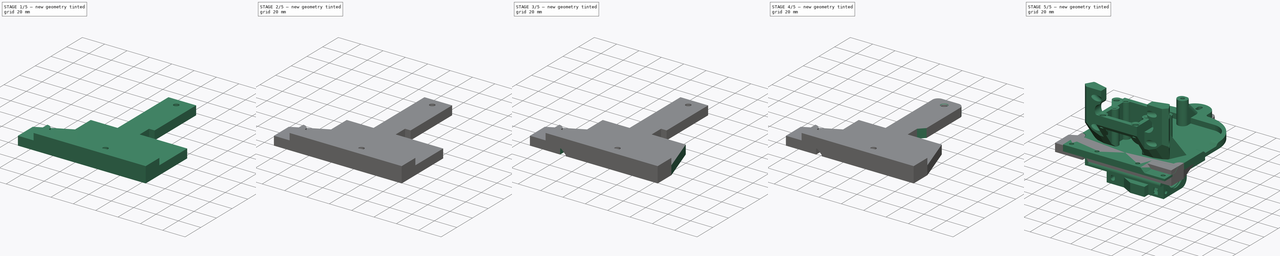
[diagram: build sequence overview — one tinted view per stage of 5, left to right]
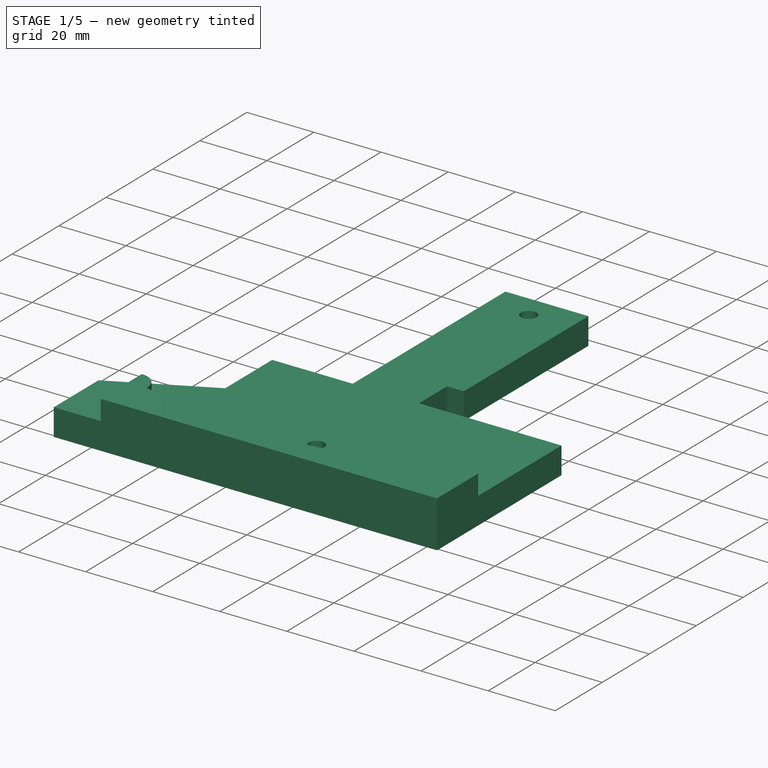
[diagram: stage 1 of 5 — iso view after this stage's code; geometry added in this stage tinted green]
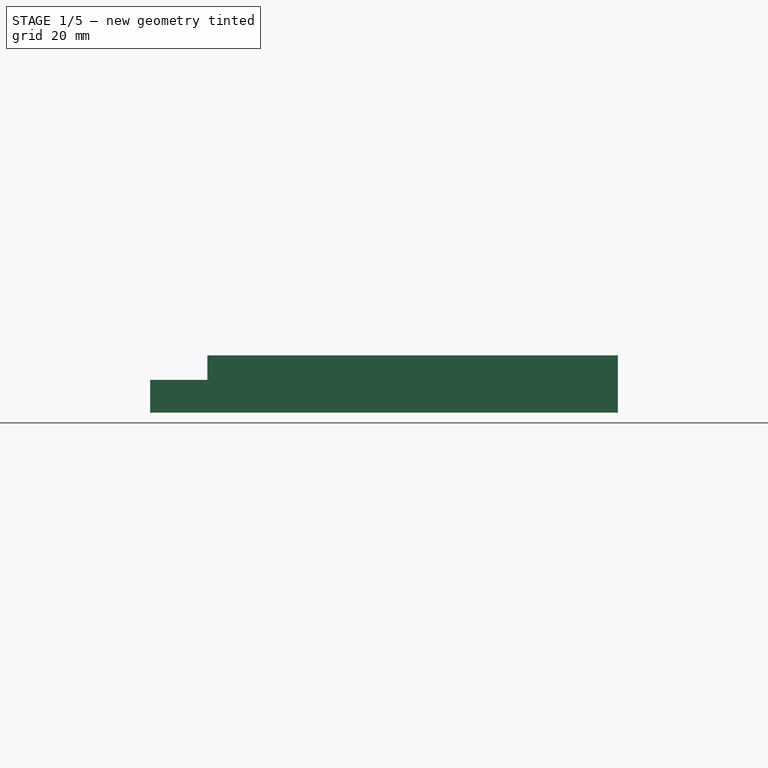
[diagram: stage 1 of 5 — front view after this stage's code; geometry added in this stage tinted green]
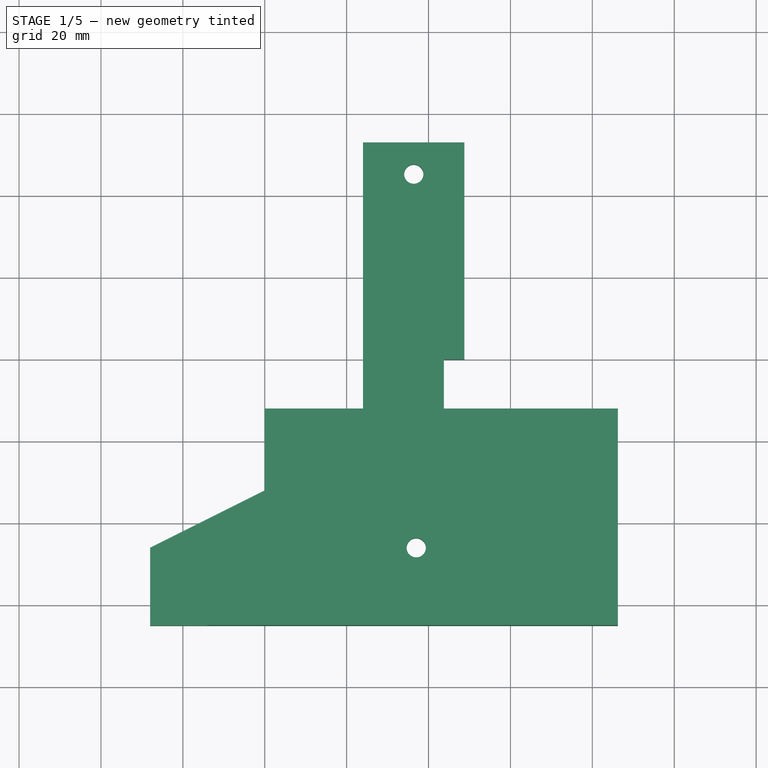
[diagram: stage 1 of 5 — top view after this stage's code; geometry added in this stage tinted green]
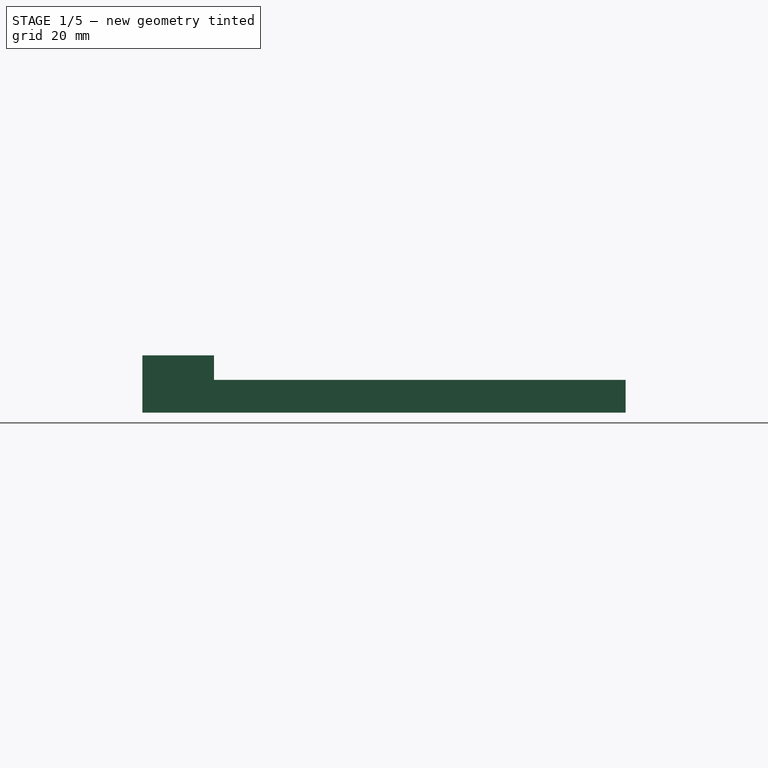
[diagram: stage 1 of 5 — right view after this stage's code; geometry added in this stage tinted green]
FCSTD DOCUMENT  (FreeCAD 0.17R13662 (Git))
Label: dual_v3_adaptor_v0.1
License: CreativeCommons Attribution-ShareAlike
LicenseURL: http://creativecommons.org/licenses/by-sa/4.0/
objects: Sketcher::SketchObject×8, Part::FeaturePython×5, PartDesign::Pocket×5, App::FeaturePython×4, PartDesign::Chamfer×4, PartDesign::Pad×2, PartDesign::SubtractivePipe×1, PartDesign::Fillet×1, PartDesign::Body×1
note: 35 computed .brp shape members not serialized (recipe doc carries the construction recipe); baked Part::Feature solids carry a one-line shape summary decoded from their .brp

FEATURE [PartDesign::Pad] Pad
  Length = 8
  Length2 = 100
  Profile = -> Sketch
  Reversed = true
  Type = 0
FEATURE [Sketcher::SketchObject] Sketch001
  MapMode = 5
  Support = -> [Pad]
  sketch-geometry (6):
    g0: Circle CenterX=37 CenterY=-46 CenterZ=0 NormalX=0 NormalY=0 NormalZ=1 AngleXU=0 Radius=2.35
    g1: Circle CenterX=36.4 CenterY=45.25 CenterZ=0 NormalX=0 NormalY=0 NormalZ=1 AngleXU=0 Radius=2.35
    g2: LineSegment StartX=48.75 StartY=0 StartZ=0 EndX=43.75 EndY=0 EndZ=0
    g3: LineSegment StartX=43.75 StartY=0 StartZ=0 EndX=43.75 EndY=-12 EndZ=0
    g4: LineSegment StartX=43.75 StartY=-12 StartZ=0 EndX=48.75 EndY=-12 EndZ=0
    g5: LineSegment StartX=48.75 StartY=-12 StartZ=0 EndX=48.75 EndY=0 EndZ=0
  constraints (18):
    c: DistanceX(g0) = 37
    c: DistanceY(g0) = -46
    c: Radius(g0) = 2.35
    c: DistanceX(g1) = 36.4
    c: DistanceY(g1) = 45.25
    c: Radius(g1) = 2.35
    c: Coincident(g2,g3)
    c: Coincident(g3,g4)
    c: Coincident(g4,g5)
    c: Coincident(g5,g2)
    c: Horizontal(g2)
    c: Horizontal(g4)
    c: Vertical(g3)
    c: Vertical(g5)
    c: PointOnObject(g2,g-1)
    c: DistanceX(g2) = 48.75
    c: DistanceX(g2,g2) = 5
    c: DistanceY(g5,g5) = 12
FEATURE [PartDesign::Pocket] Pocket
  BaseFeature = -> Pad
  Length = 5
  Length2 = 100
  Profile = -> Sketch001
  Type = 1
FEATURE [Sketcher::SketchObject] Sketch002
  MapMode = 5
  Support = -> [Pocket]
  sketch-geometry (11):
    g0: LineSegment StartX=-14 StartY=-65 StartZ=0 EndX=-14 EndY=-47.5 EndZ=0
    g1: LineSegment [constr] StartX=-14 StartY=-47.5 StartZ=0 EndX=-8.5 EndY=-53.375 EndZ=0
    g2: LineSegment StartX=-8.5 StartY=-53.5 StartZ=0 EndX=36.5 EndY=-58.5 EndZ=0
    g3: LineSegment StartX=36.5 StartY=-58.5 StartZ=0 EndX=80.738 EndY=-53.137 EndZ=0
    g4: LineSegment [constr] StartX=80.738 StartY=-53.012 StartZ=0 EndX=86.25 EndY=-47.5 EndZ=0
    g5: LineSegment StartX=86.25 StartY=-47.5 StartZ=0 EndX=86.25 EndY=-65 EndZ=0
    g6: LineSegment StartX=86.25 StartY=-65 StartZ=0 EndX=-14 EndY=-65 EndZ=0
    g7: ArcOfCircle CenterX=86.25 CenterY=-53.012 CenterZ=0 NormalX=0 NormalY=0 NormalZ=1 AngleXU=0 Radius=5.51197 StartAngle=1.5708 EndAngle=3.14159
    g8: ArcOfCircle CenterX=-14 CenterY=-53.012 CenterZ=0 NormalX=0 NormalY=0 NormalZ=1 AngleXU=0 Radius=5.51197 StartAngle=6.21728 EndAngle=7.85398
    g9: LineSegment StartX=-8.5 StartY=-53.375 StartZ=0 EndX=-8.5 EndY=-53.5 EndZ=0
    g10: LineSegment StartX=80.738 StartY=-53.012 StartZ=0 EndX=80.738 EndY=-53.137 EndZ=0
  constraints (33):
    c: Coincident(g0,g1)
    c: Coincident(g2,g3)
    c: Coincident(g4,g5)
    c: Coincident(g5,g6)
    c: Coincident(g0,g6)
    c: Horizontal(g6)
    c: Vertical(g0)
    c: Vertical(g5)
    c: Coincident(g0,g8)
    c: PointOnObject(g8,g0)
    c: DistanceX(g8) = -14
    c: DistanceY(g0,g0) = 17.5
    c: PointOnObject(g7,g5)
    c: Coincident(g4,g7)
    c: DistanceX(g4) = 86.25
    c: DistanceY(g0,g4) = 0
    c: DistanceX(g2) = 36.5
    c: DistanceY(g2) = -58.5
    c: DistanceY(g0) = -65
    c: Coincident(g1,g8)
    c: Coincident(g2,g9)
    c: Coincident(g1,g9)
    c: Vertical(g9)
    c: Coincident(g4,g7)
    c: DistanceY(g7,g4) = 0
    c: Coincident(g4,g10)
    c: Coincident(g3,g10)
    c: Vertical(g10)
    c: Equal(g10,g9)
    c: DistanceY(g9,g9) = 0.125
    c: DistanceX(g8,g2) = 5.5
    c: Equal(g7,g8)
    c: DistanceY(g2) = -53.5
FEATURE [PartDesign::Pad] Pad001
  BaseFeature = -> Pocket
  Length = 6
  Length2 = 100
  Profile = -> Sketch002
  Type = 0
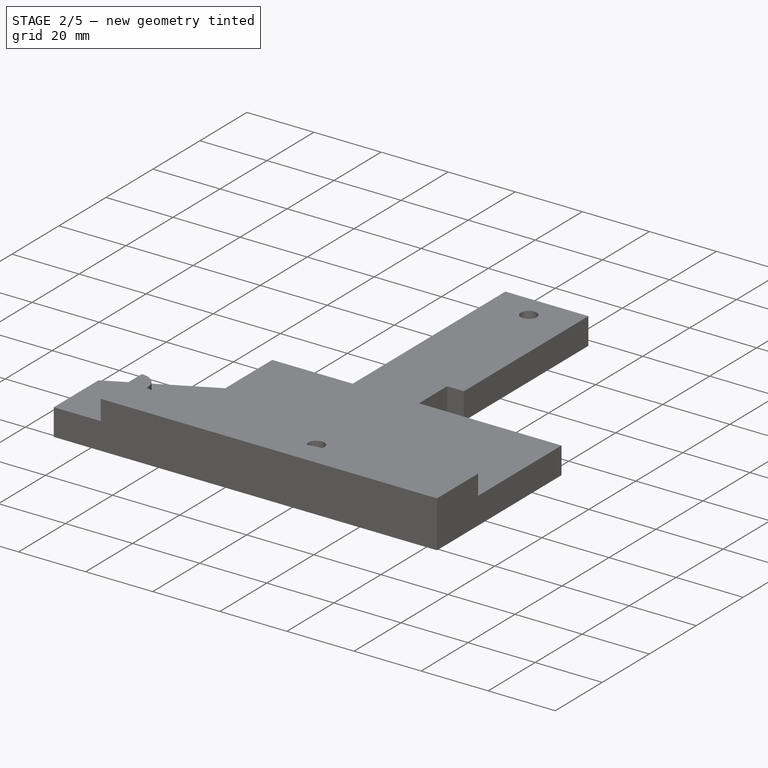
[diagram: stage 2 of 5 — iso view after this stage's code; geometry added in this stage tinted green]
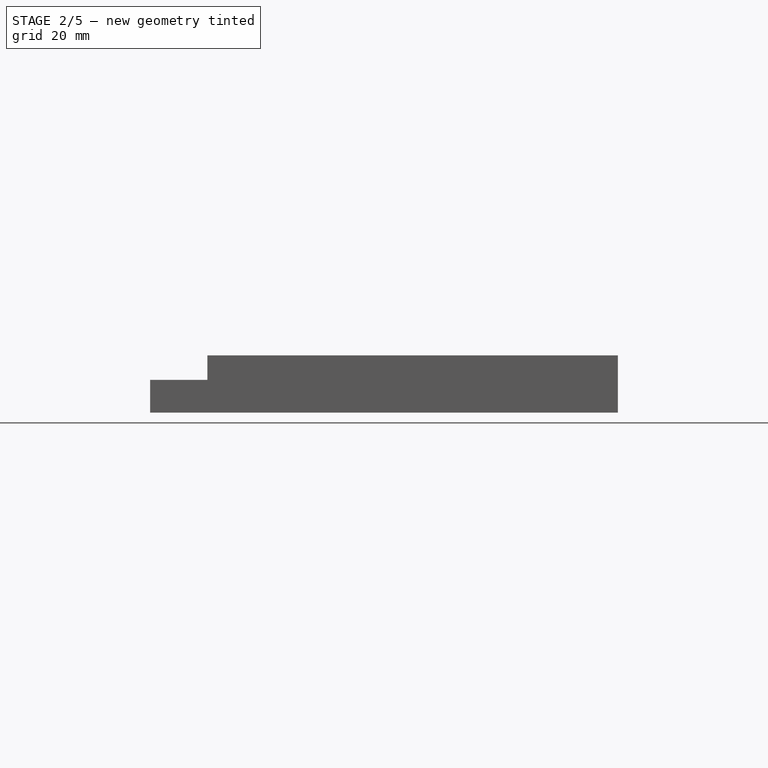
[diagram: stage 2 of 5 — front view after this stage's code; geometry added in this stage tinted green]
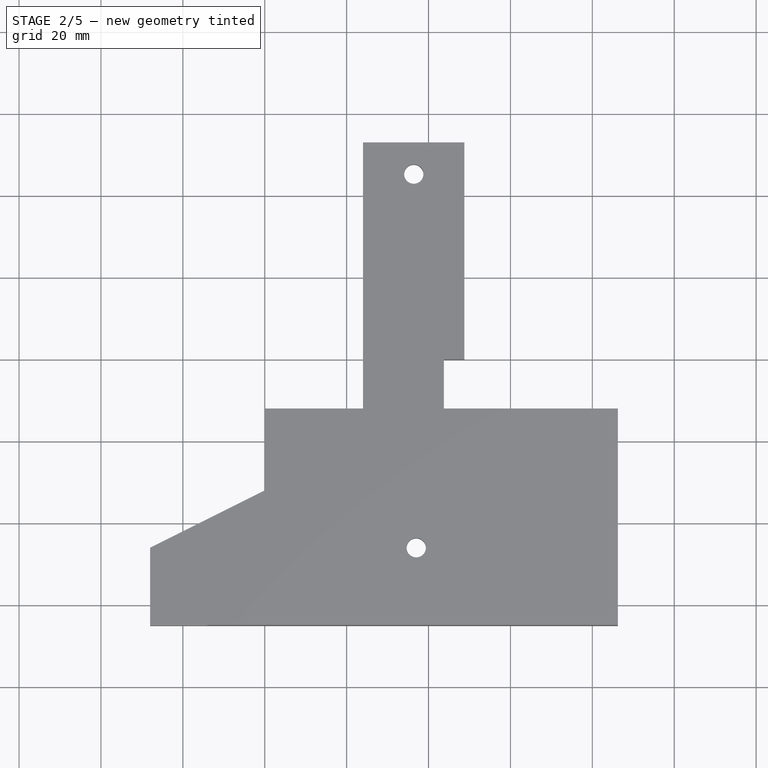
[diagram: stage 2 of 5 — top view after this stage's code; geometry added in this stage tinted green]
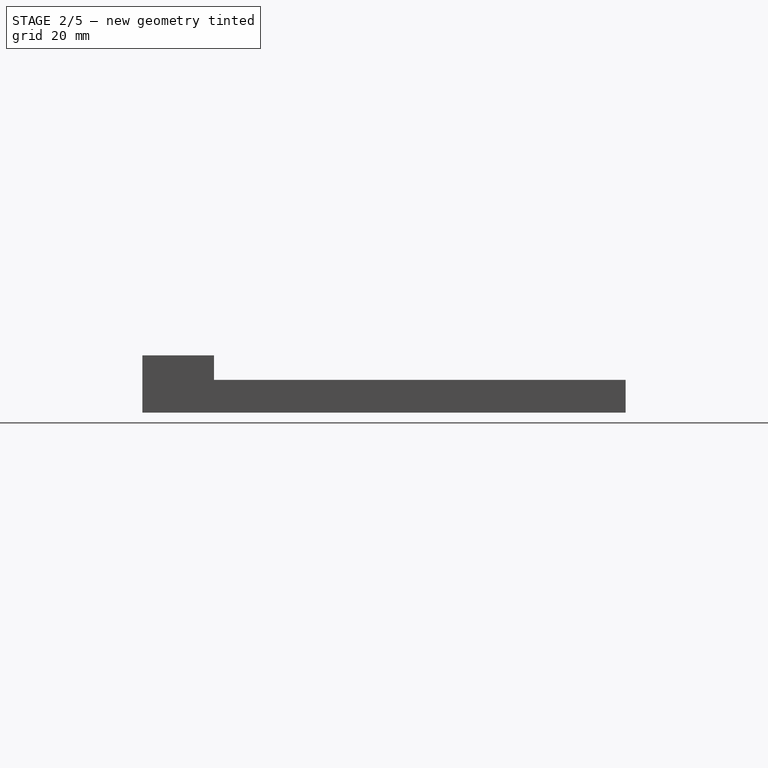
[diagram: stage 2 of 5 — right view after this stage's code; geometry added in this stage tinted green]
FEATURE [Sketcher::SketchObject] Sketch003
  MapMode = 5
  Placement = pos=(-8.5,0,0) rot=(0.57735,0.57735,0.57735;2.0944rad)
  Support = -> [Pad001]
  sketch-geometry (3):
    g0: LineSegment StartX=-53.5 StartY=5.9 StartZ=0 EndX=-59.4 EndY=0 EndZ=0
    g1: LineSegment StartX=-59.4 StartY=0 StartZ=0 EndX=-53.5 EndY=0 EndZ=0
    g2: LineSegment StartX=-53.5 StartY=0 StartZ=0 EndX=-53.5 EndY=5.9 EndZ=0
  constraints (9):
    c: Coincident(g0,g1)
    c: Coincident(g1,g2)
    c: Coincident(g2,g0)
    c: Vertical(g2)
    c: Horizontal(g1)
    c: Equal(g1,g2)
    c: DistanceY(g2,g2) = 5.9
    c: PointOnObject(g1,g-1)
    c: DistanceX(g1) = -53.5
FEATURE [PartDesign::SubtractivePipe] SubtractivePipe
  AuxilleryCurvelinear = true
  AuxillerySpineTangent = false
  BaseFeature = -> Pad001
  Binormal = (0,0,0)
  Mode = 0
  Profile = -> Sketch003
  Spine = -> Pad001 [Edge17,Edge18]
  SpineTangent = false
  Transformation = 0
  Transition = 0
FEATURE [Sketcher::SketchObject] Sketch004
  MapMode = 5
  Placement = pos=(0,0,-8) rot=(1,0,0;3.14159rad)
  Support = -> [SubtractivePipe]
  sketch-geometry (21):
    g0: LineSegment StartX=24.0255 StartY=57.6314 StartZ=0 EndX=35.5801 EndY=50.65 EndZ=0
    g1: LineSegment StartX=35.5801 StartY=50.65 StartZ=0 EndX=31.9601 EndY=44.6587 EndZ=0
    g2: LineSegment StartX=31.9601 StartY=44.6587 StartZ=0 EndX=20.4055 EndY=51.6401 EndZ=0
    g3: LineSegment StartX=20.4055 StartY=51.6401 StartZ=0 EndX=24.0255 EndY=57.6314 EndZ=0
    g4: LineSegment StartX=38.4199 StartY=50.65 StartZ=0 EndX=42.0399 EndY=44.6587 EndZ=0
    g5: LineSegment StartX=42.0399 StartY=44.6587 StartZ=0 EndX=53.5945 EndY=51.6401 EndZ=0
    g6: LineSegment StartX=53.5945 StartY=51.6401 StartZ=0 EndX=49.9745 EndY=57.6314 EndZ=0
    g7: LineSegment StartX=49.9745 StartY=57.6314 StartZ=0 EndX=38.4199 EndY=50.65 EndZ=0
    g8: LineSegment StartX=33.25 StartY=42.25 StartZ=0 EndX=40.75 EndY=42.25 EndZ=0
    g9: LineSegment StartX=40.75 StartY=42.25 StartZ=0 EndX=40.75 EndY=30.5 EndZ=0
    g10: LineSegment StartX=40.75 StartY=30.5 StartZ=0 EndX=33.25 EndY=30.5 EndZ=0
    g11: LineSegment StartX=33.25 StartY=30.5 StartZ=0 EndX=33.25 EndY=42.25 EndZ=0
    g12: LineSegment [constr] StartX=37 StartY=53 StartZ=0 EndX=30.5048 EndY=42.25 EndZ=0
    g13: LineSegment [constr] StartX=30.5048 StartY=42.25 StartZ=0 EndX=43.4952 EndY=42.25 EndZ=0
    g14: LineSegment [constr] StartX=43.4952 StartY=42.25 StartZ=0 EndX=37 EndY=53 EndZ=0
    g15: Circle [constr] CenterX=37 CenterY=46 CenterZ=0 NormalX=0 NormalY=0 NormalZ=1 AngleXU=0 Radius=7.5
    g16: Circle [constr] CenterX=37 CenterY=46 CenterZ=0 NormalX=0 NormalY=0 NormalZ=1 AngleXU=0 Radius=2
    g17: LineSegment [constr] StartX=38.4199 StartY=50.65 StartZ=0 EndX=35.5801 EndY=50.65 EndZ=0
    g18: LineSegment [constr] StartX=35.5801 StartY=50.65 StartZ=0 EndX=31.9601 EndY=44.6587 EndZ=0
    g19: LineSegment [constr] StartX=31.9601 StartY=44.6587 StartZ=0 EndX=42.0399 EndY=44.6587 EndZ=0
    g20: LineSegment [constr] StartX=42.0399 StartY=44.6587 StartZ=0 EndX=38.4199 EndY=50.65 EndZ=0
  constraints (58):
    c: Coincident(g0,g1)
    c: Coincident(g1,g2)
    c: Coincident(g2,g3)
    c: Coincident(g4,g5)
    c: Coincident(g5,g6)
    c: Coincident(g6,g7)
    c: Coincident(g8,g9)
    c: Coincident(g9,g10)
    c: Coincident(g10,g11)
    c: Coincident(g8,g11)
    c: Vertical(g11)
    c: Vertical(g9)
    c: Coincident(g4,g7)
    c: Coincident(g0,g3)
    c: Coincident(g12,g13)
    c: Coincident(g13,g14)
    c: Coincident(g14,g12)
    c: Equal(g12,g14)
    c: PointOnObject(g12,g15)
    c: PointOnObject(g13,g15)
    c: Coincident(g15,g16)
    c: DistanceX(g15) = 37
    c: DistanceY(g15) = 46
    c: Radius(g15) = 7.5
    c: Radius(g16) = 2
    c: PointOnObject(g4,g14)
    c: PointOnObject(g4,g14)
    c: Horizontal(g13)
    c: Perpendicular(g4,g5)
    c: Perpendicular(g7,g6)
    c: Perpendicular(g5,g6)
    c: DistanceY(g13,g15) = 3.75
    c: DistanceY(g14,g14) = 10.75
    c: Perpendicular(g3,g0)
    c: Perpendicular(g1,g0)
    c: Perpendicular(g2,g1)
    c: Coincident(g17,g18)
    c: Coincident(g18,g19)
    c: Coincident(g19,g20)
    c: Coincident(g20,g17)
    c: Horizontal(g17)
    c: Horizontal(g19)
    c: Coincident(g0,g17)
    c: Coincident(g4,g17)
    c: Coincident(g4,g19)
    c: Coincident(g1,g18)
    c: PointOnObject(g0,g12)
    c: PointOnObject(g1,g12)
    c: Distance(g1) = 7
    c: Horizontal(g8)
    c: PointOnObject(g8,g13)
    c: DistanceX(g15,g8) = 3.75
    c: DistanceX(g8,g8) = 7.5
    c: DistanceY(g9,g9) = 11.75
    c: DistanceY(g15,g0) = 4.65
    c: Equal(g0,g7)
    c: Distance(g7) = 13.5
    c: Horizontal(g10)
FEATURE [PartDesign::Pocket] Pocket001
  BaseFeature = -> SubtractivePipe
  Length = 3
  Length2 = 100
  Profile = -> Sketch004
  Type = 0
FEATURE [Sketcher::SketchObject] Sketch005
  MapMode = 5
  Placement = pos=(0,-12,0) rot=(0,0.707107,0.707107;3.14159rad)
  Support = -> [Pocket001]
  sketch-geometry (2):
    g0: Circle CenterX=-57 CenterY=-4.125 CenterZ=0 NormalX=0 NormalY=0 NormalZ=1 AngleXU=0 Radius=2.35
    g1: Circle CenterX=-9 CenterY=-4.125 CenterZ=0 NormalX=0 NormalY=0 NormalZ=1 AngleXU=0 Radius=2.35
  constraints (6):
    c: DistanceX(g0) = -57
    c: DistanceY(g0) = -4.125
    c: Radius(g0) = 2.35
    c: DistanceX(g1,g0) = -48
    c: DistanceY(g1,g0) = 0
    c: Equal(g0,g1)
FEATURE [PartDesign::Pocket] Pocket002
  BaseFeature = -> Pocket001
  Length = 7
  Length2 = 100
  Profile = -> Sketch005
  Type = 0
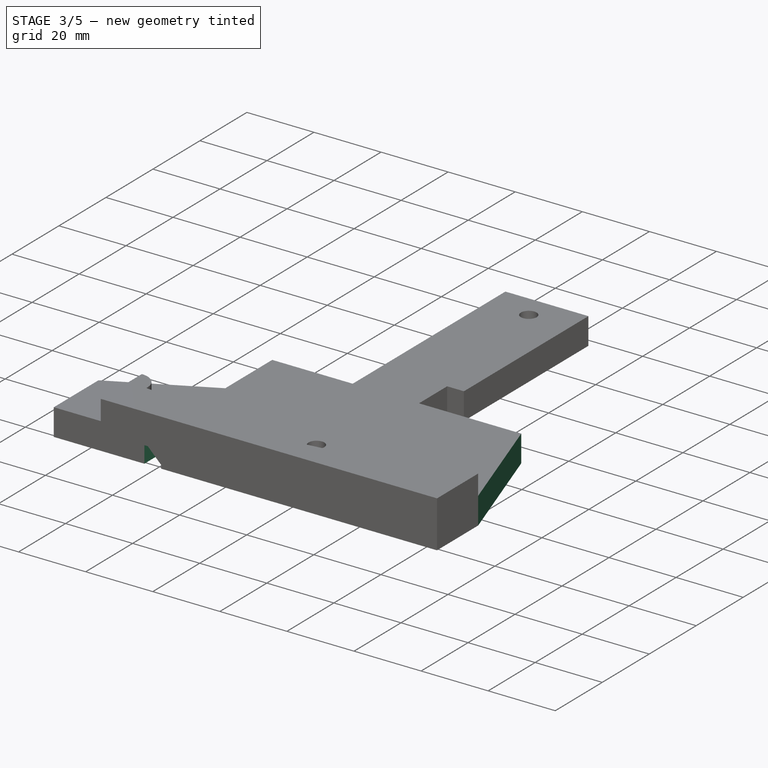
[diagram: stage 3 of 5 — iso view after this stage's code; geometry added in this stage tinted green]
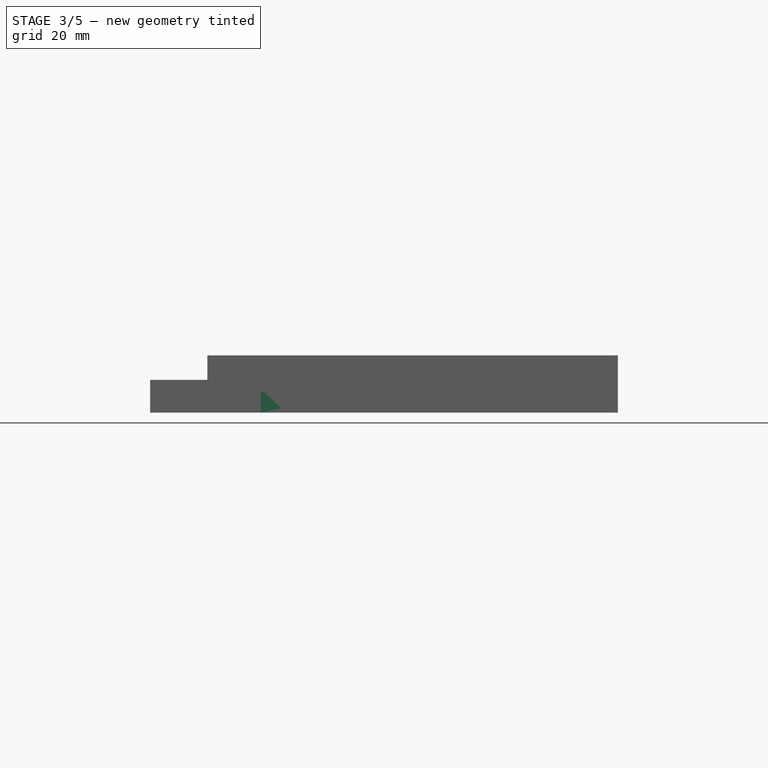
[diagram: stage 3 of 5 — front view after this stage's code; geometry added in this stage tinted green]
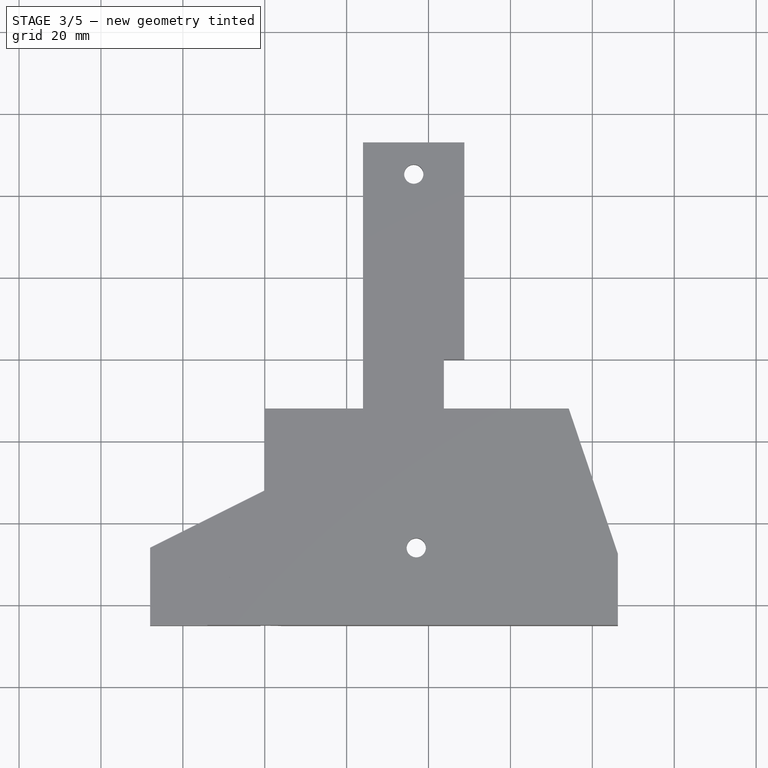
[diagram: stage 3 of 5 — top view after this stage's code; geometry added in this stage tinted green]
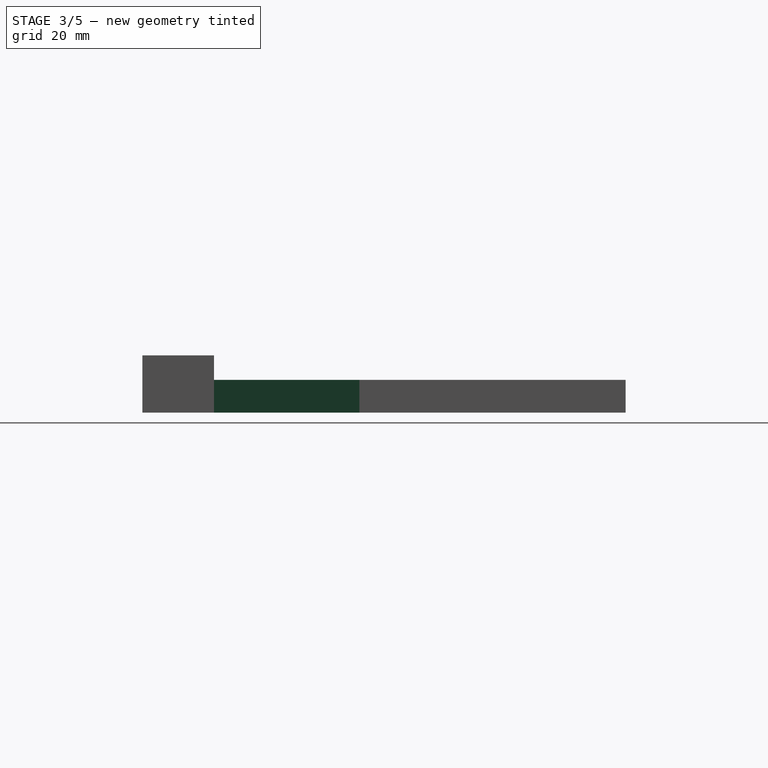
[diagram: stage 3 of 5 — right view after this stage's code; geometry added in this stage tinted green]
FEATURE [Sketcher::SketchObject] Sketch006
  ExternalGeometry = -> [Pocket002]
  MapMode = 5
  Support = -> [Pocket002]
  sketch-geometry (3):
    g0: LineSegment StartX=74.25 StartY=-12 StartZ=0 EndX=86.25 EndY=-47.5 EndZ=0
    g1: LineSegment StartX=86.25 StartY=-47.5 StartZ=0 EndX=86.25 EndY=-12 EndZ=0
    g2: LineSegment StartX=86.25 StartY=-12 StartZ=0 EndX=74.25 EndY=-12 EndZ=0
  constraints (8):
    c: Coincident(g0,g1)
    c: Coincident(g1,g2)
    c: Coincident(g0,g2)
    c: Coincident(g1,g-4)
    c: Vertical(g1)
    c: Coincident(g0,g-3)
    c: Horizontal(g2)
    c: DistanceX(g2,g2) = 12
FEATURE [PartDesign::Pocket] Pocket003
  BaseFeature = -> Pocket002
  Length = 5
  Length2 = 100
  Profile = -> Sketch006
  Type = 1
FEATURE [Sketcher::SketchObject] Sketch007
  MapMode = 5
  Placement = pos=(0,0,-8) rot=(1,0,0;3.14159rad)
  Support = -> [Pocket003]
  sketch-geometry (4):
    g0: LineSegment StartX=-1 StartY=65 StartZ=0 EndX=4 EndY=65 EndZ=0
    g1: LineSegment StartX=4 StartY=65 StartZ=0 EndX=4 EndY=52 EndZ=0
    g2: LineSegment StartX=4 StartY=52 StartZ=0 EndX=-1 EndY=52 EndZ=0
    g3: LineSegment StartX=-1 StartY=52 StartZ=0 EndX=-1 EndY=65 EndZ=0
  constraints (12):
    c: Coincident(g0,g1)
    c: Coincident(g1,g2)
    c: Coincident(g2,g3)
    c: Coincident(g3,g0)
    c: Horizontal(g0)
    c: Horizontal(g2)
    c: Vertical(g1)
    c: Vertical(g3)
    c: DistanceX(g0) = -1
    c: DistanceY(g0) = 65
    c: DistanceX(g0,g0) = 5
    c: DistanceY(g1,g1) = 13
FEATURE [PartDesign::Pocket] Pocket004
  BaseFeature = -> Pocket003
  Length = 5
  Length2 = 100
  Profile = -> Sketch007
  Type = 0
FEATURE [PartDesign::Chamfer] Chamfer
  Base = -> Pocket004 [Edge102]
  BaseFeature = -> Pocket004
  Size = 3.99
FEATURE [PartDesign::Chamfer] Chamfer001
  Base = -> Chamfer [Face49,Face50,Face48]
  BaseFeature = -> Chamfer
  Size = 2.99
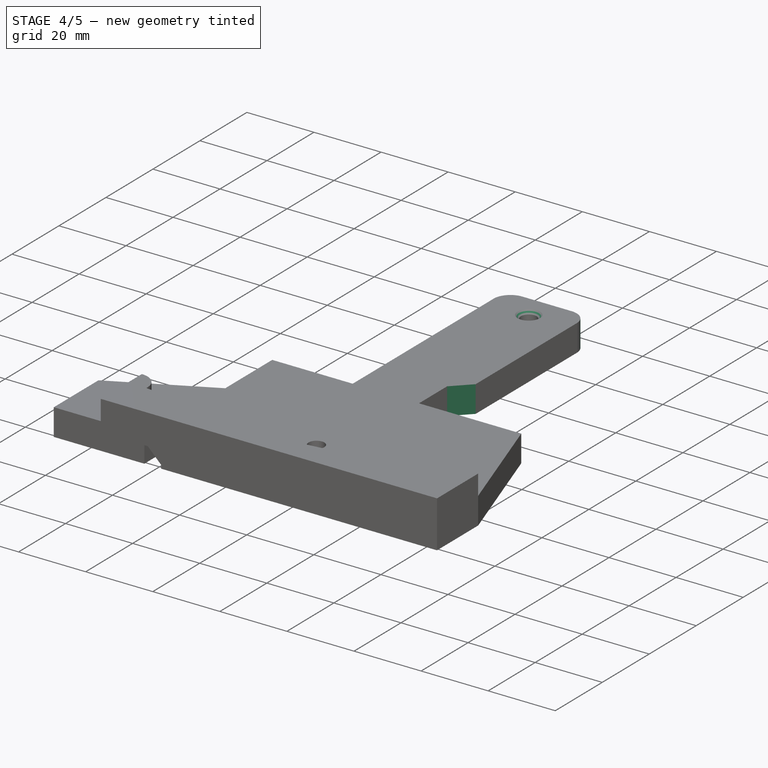
[diagram: stage 4 of 5 — iso view after this stage's code; geometry added in this stage tinted green]
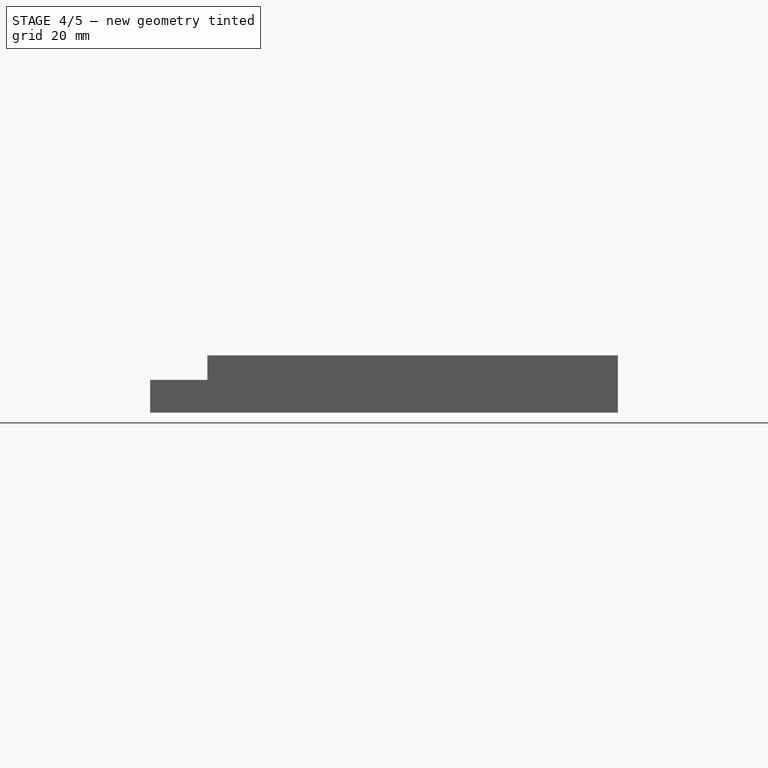
[diagram: stage 4 of 5 — front view after this stage's code; geometry added in this stage tinted green]
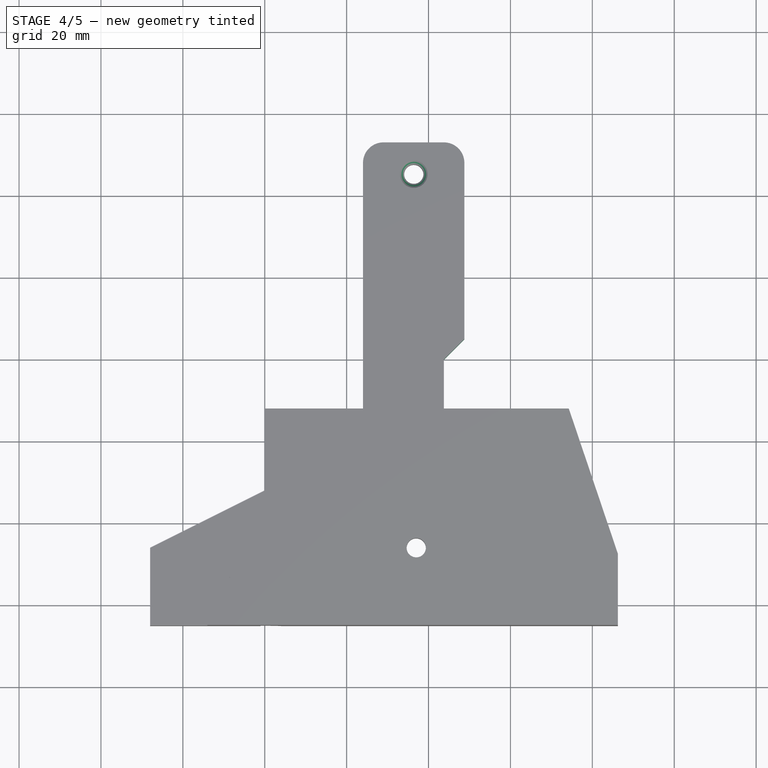
[diagram: stage 4 of 5 — top view after this stage's code; geometry added in this stage tinted green]
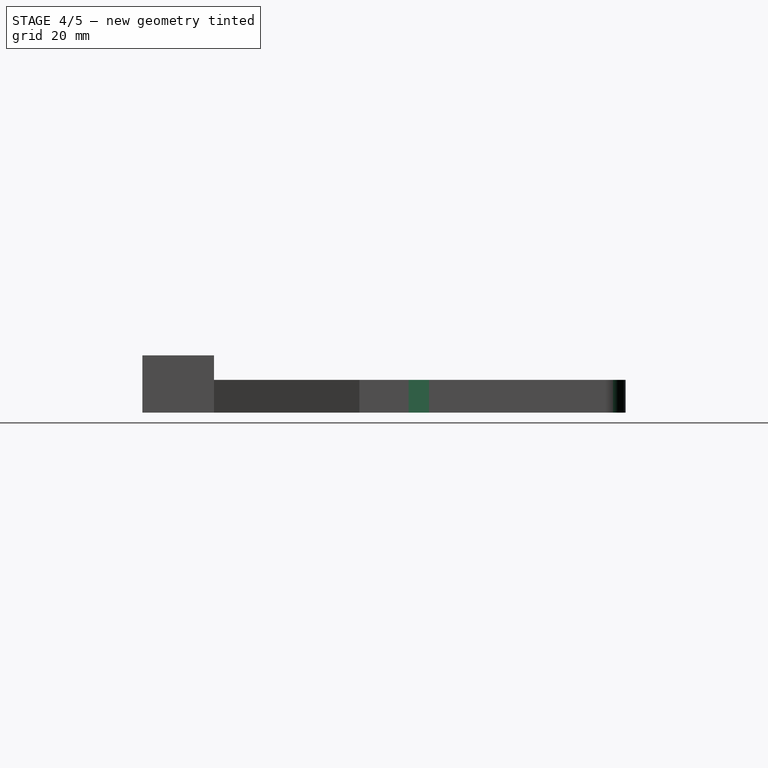
[diagram: stage 4 of 5 — right view after this stage's code; geometry added in this stage tinted green]
FEATURE [PartDesign::Chamfer] Chamfer002
  Base = -> Chamfer001 [Edge31,Edge108,Edge86,Edge71]
  BaseFeature = -> Chamfer001
  Size = 1
FEATURE [PartDesign::Fillet] Fillet
  Base = -> Chamfer002 [Edge66,Edge65]
  BaseFeature = -> Chamfer002
  Radius = 5
FEATURE [PartDesign::Chamfer] Chamfer003
  Base = -> Fillet [Edge37]
  BaseFeature = -> Fillet
  Size = 4.99
FEATURE [PartDesign::Body] Body
  Group = -> [Sketch,Pad,Sketch001,Pocket,Sketch002,Pad001,Sketch003,SubtractivePipe,Sketch004,Pocket001,Sketch005,Pocket002,Sketch006,Pocket003,Sketch007,Pocket004,Chamfer,Chamfer001,Chamfer002,Fillet,Chamfer003]
  Origin = -> Origin
  Tip = -> Chamfer003
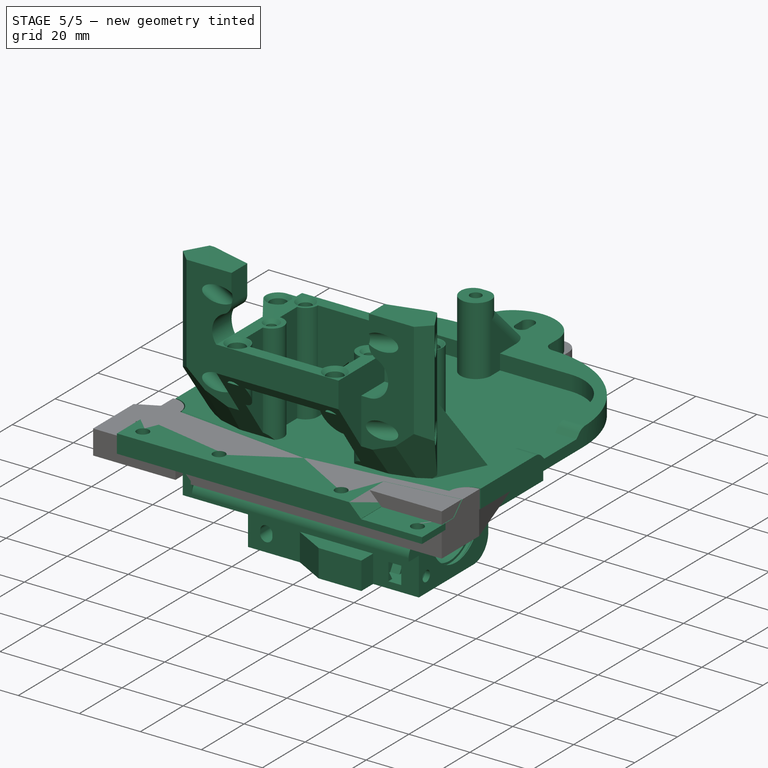
[diagram: stage 5 of 5 — iso view after this stage's code; geometry added in this stage tinted green]
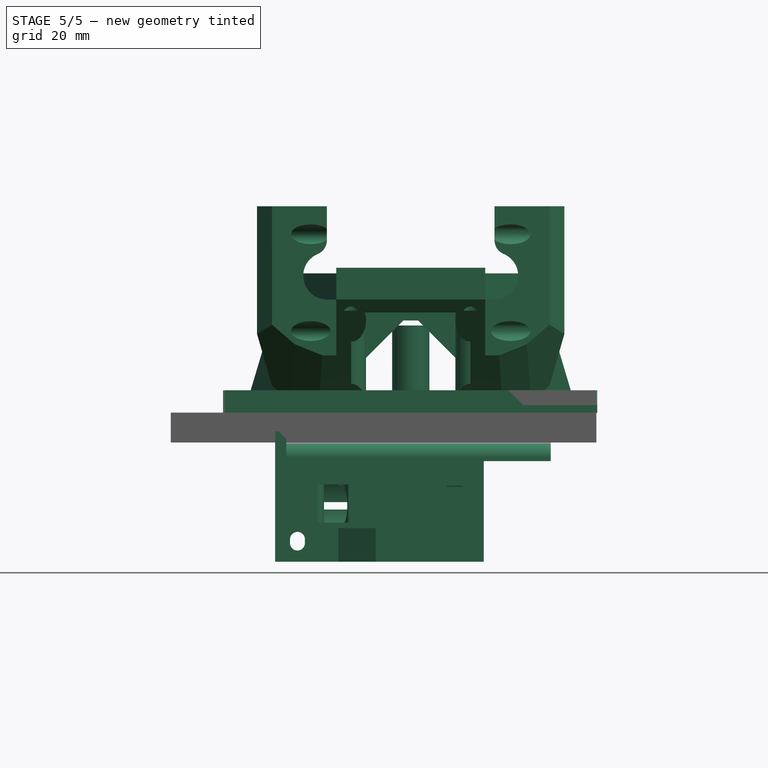
[diagram: stage 5 of 5 — front view after this stage's code; geometry added in this stage tinted green]
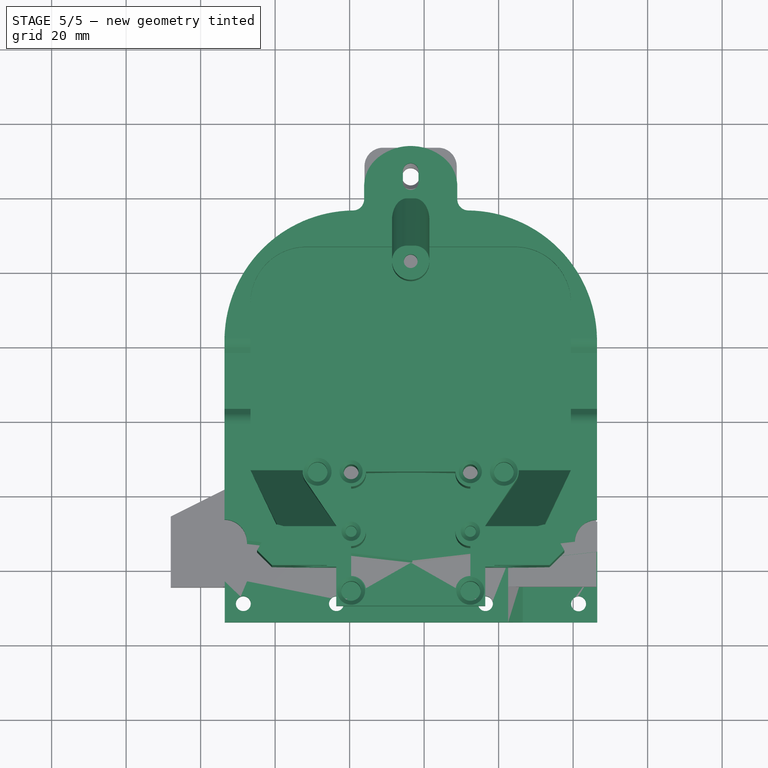
[diagram: stage 5 of 5 — top view after this stage's code; geometry added in this stage tinted green]
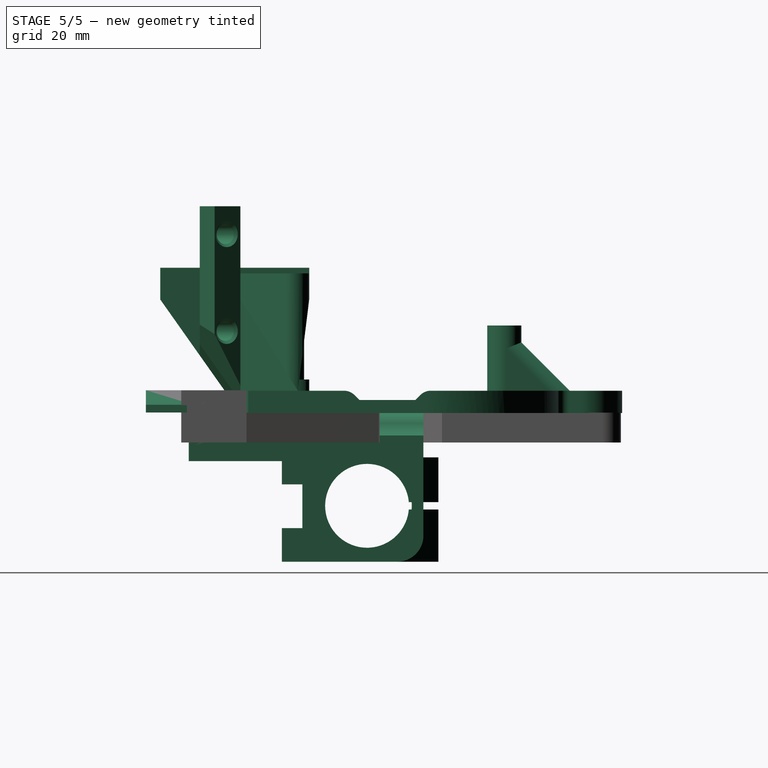
[diagram: stage 5 of 5 — right view after this stage's code; geometry added in this stage tinted green]
FEATURE [Part::FeaturePython] x_carriage_01  # a2plus imported part (geometry in sourceFile) (typed FeaturePython)
  Placement = pos=(0,0,0) rot=(0.57735,0.57735,0.57735;2.0944rad)
  fixedPosition = true
  sourceFile = <userpath>/Projects/taz-redgum/production_parts/printed_parts/x_carriage/x_carriage_v0.1.fcstd
  timeLastImport = 1.55839e+09
  updateColors = true
FEATURE [Part::FeaturePython] dual_mount_gs_01  # a2plus imported part (geometry in sourceFile) (typed FeaturePython)
  Placement = pos=(36.407,-5.44933,-0.1) rot=(0,0,1;0rad)
  fixedPosition = false
  sourceFile = <userpath>/Projects/yellowfin/production_parts/printed_parts/dual_mount/dual_mount_gs.fcstd
  timeLastImport = 1510609218
  updateColors = true
FEATURE [Part::FeaturePython] aerostruder_v2_01  # a2plus imported part (geometry in sourceFile) (typed FeaturePython)
  Placement = pos=(74.032,14,-8) rot=(-1,0,0;1.5708rad)
  fixedPosition = false
  sourceFile = <userpath>/Projects/mini-hibiscus/production_parts/assemblies/assembly_subs/aerostruder_v2.fcstd
  timeLastImport = 1.53434e+09
  updateColors = true
FEATURE [App::FeaturePython] circularEdgeConstraint01  label="circularEdgeConstraint01__x_carriage_01"  # a2plus constraint (typed FeaturePython)
  Object1 = aerostruder_v2_01
  Object2 = x_carriage_01
  SubElement1 = Edge833
  SubElement2 = Edge69
  Type = circularEdge
  directionConstraint = 1
  lockRotation = false
  offset = 0
FEATURE [App::FeaturePython] circularEdgeConstraint01_mirror  label="circularEdgeConstraint01__aerostruder_v2_01"  # a2plus constraint (typed FeaturePython)
  Object1 = aerostruder_v2_01
  Object2 = x_carriage_01
  SubElement1 = Edge833
  SubElement2 = Edge69
  Type = circularEdge
  directionConstraint = 1
  lockRotation = false
  offset = 0
FEATURE [Part::FeaturePython] somestruder_dual_assembly_01  # a2plus imported part (geometry in sourceFile) (typed FeaturePython)
  Placement = pos=(36.407,-5.44933,1.9) rot=(-1,0,0;1.5708rad)
  fixedPosition = false
  sourceFile = <userpath>/Projects/yellowfin/production_parts/assemblies/somestruder_dual_assembly.fcstd
  timeLastImport = 1510609218
  updateColors = true
FEATURE [Sketcher::SketchObject] Sketch
  MapMode = 5
  Support = -> [XY_Plane]
  sketch-geometry (10):
    g0: LineSegment StartX=0 StartY=-12 StartZ=0 EndX=24 EndY=-12 EndZ=0
    g1: LineSegment StartX=24 StartY=-12 StartZ=0 EndX=24 EndY=53 EndZ=0
    g2: LineSegment StartX=24 StartY=53 StartZ=0 EndX=48.75 EndY=53 EndZ=0
    g3: LineSegment StartX=48.75 StartY=53 StartZ=0 EndX=48.75 EndY=-12 EndZ=0
    g4: LineSegment StartX=48.75 StartY=-12 StartZ=0 EndX=86.25 EndY=-12 EndZ=0
    g5: LineSegment StartX=86.25 StartY=-12 StartZ=0 EndX=86.25 EndY=-65 EndZ=0
    g6: LineSegment StartX=86.25 StartY=-65 StartZ=0 EndX=-28 EndY=-65 EndZ=0
    g7: LineSegment StartX=-28 StartY=-65 StartZ=0 EndX=-28 EndY=-46 EndZ=0
    g8: LineSegment StartX=-28 StartY=-46 StartZ=0 EndX=0 EndY=-32 EndZ=0
    g9: LineSegment StartX=0 StartY=-32 StartZ=0 EndX=0 EndY=-12 EndZ=0
  constraints (30):
    c: Coincident(g0,g1)
    c: Coincident(g1,g2)
    c: Coincident(g2,g3)
    c: Coincident(g3,g4)
    c: Coincident(g4,g5)
    c: Coincident(g5,g6)
    c: Coincident(g6,g7)
    c: Coincident(g7,g8)
    c: Coincident(g8,g9)
    c: Coincident(g0,g9)
    c: Vertical(g9)
    c: Vertical(g1)
    c: Vertical(g3)
    c: Vertical(g5)
    c: Vertical(g7)
    c: Horizontal(g6)
    c: Horizontal(g0)
    c: Horizontal(g4)
    c: Horizontal(g2)
    c: PointOnObject(g0,g-2)
    c: DistanceY(g0) = -12
    c: DistanceY(g9,g9) = 20
    c: DistanceX(g8,g8) = 28
    c: DistanceX(g0,g0) = 24
    c: DistanceX(g2,g2) = 24.75
    c: DistanceY(g1,g1) = 65
    c: Equal(g3,g1)
    c: DistanceX(g4,g4) = 37.5
    c: DistanceY(g5,g5) = 53
    c: DistanceY(g8,g8) = 14
FEATURE [App::FeaturePython] circularEdgeConstraint02  label="circularEdgeConstraint02__somestruder_dual_assembly_01"  # a2plus constraint (typed FeaturePython)
  Object1 = dual_mount_gs_01
  Object2 = somestruder_dual_assembly_01
  SubElement1 = Edge290
  SubElement2 = Edge1956
  Type = circularEdge
  directionConstraint = 0
  lockRotation = false
  offset = 0
FEATURE [App::FeaturePython] circularEdgeConstraint02_mirror  label="circularEdgeConstraint02__dual_mount_gs_01"  # a2plus constraint (typed FeaturePython)
  Object1 = dual_mount_gs_01
  Object2 = somestruder_dual_assembly_01
  SubElement1 = Edge290
  SubElement2 = Edge1956
  Type = circularEdge
  directionConstraint = 0
  lockRotation = false
  offset = 0
FEATURE [Part::FeaturePython] x_carriage_guide_v2_01  # a2plus imported part (geometry in sourceFile) (typed FeaturePython)
  Placement = pos=(86.4678,-74.5118,6.03729) rot=(0,1,0;3.14159rad)
  fixedPosition = false
  sourceFile = <userpath>/Projects/taz-olive/production_parts/printed_parts/x_carriage_guide/x_carriage_guide_v2.fcstd
  timeLastImport = 1488401380
  updateColors = true
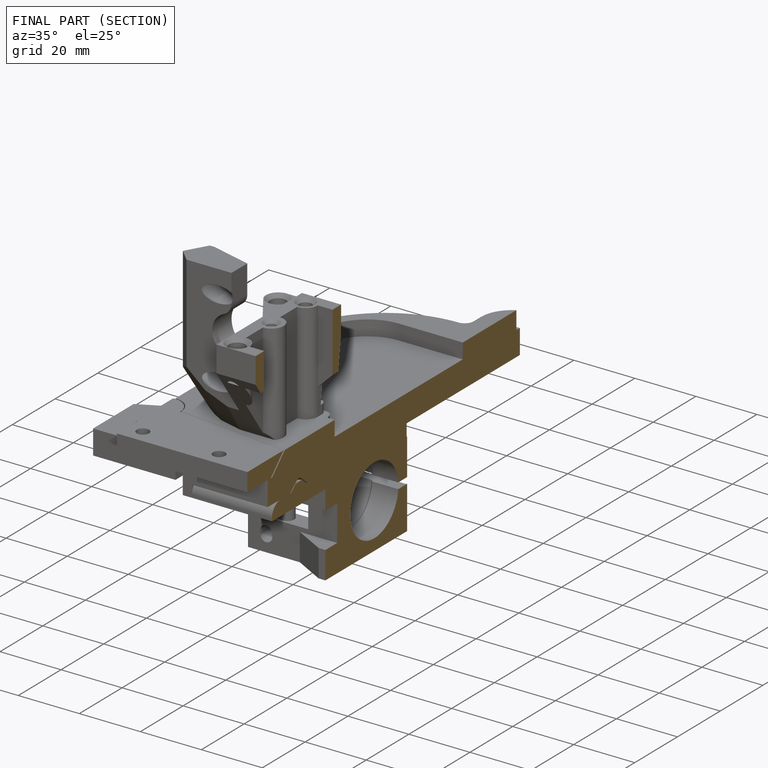
[diagram: finished part — half-section view (interior)]
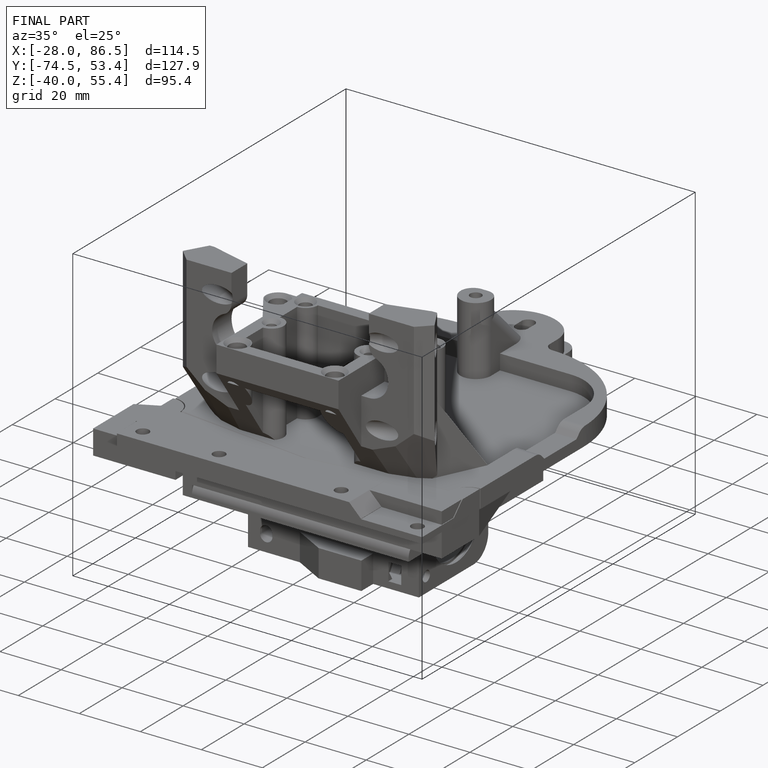
[diagram: finished part — iso view with bounding-box wireframe]
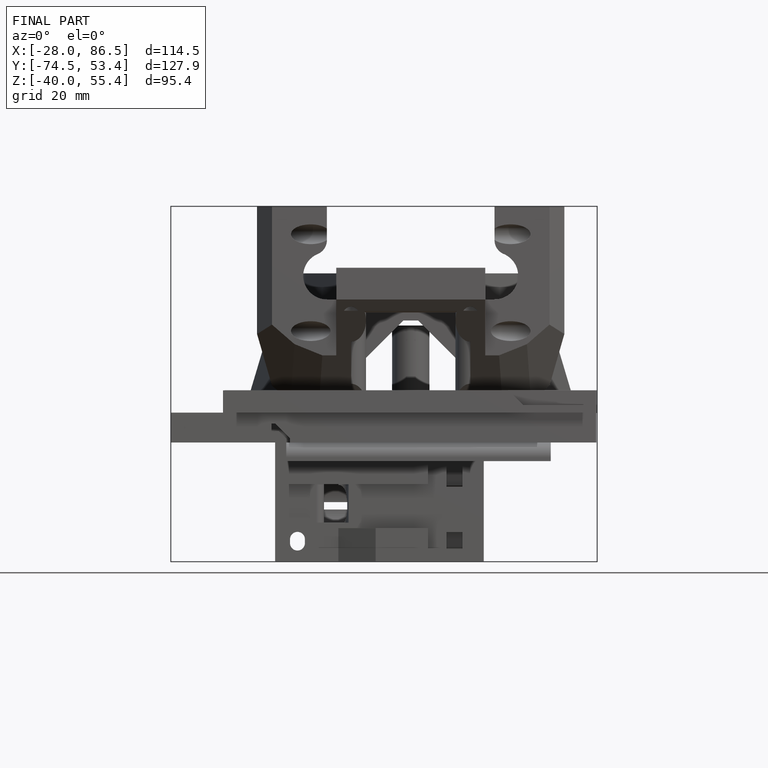
[diagram: finished part — front view with bounding-box wireframe]
